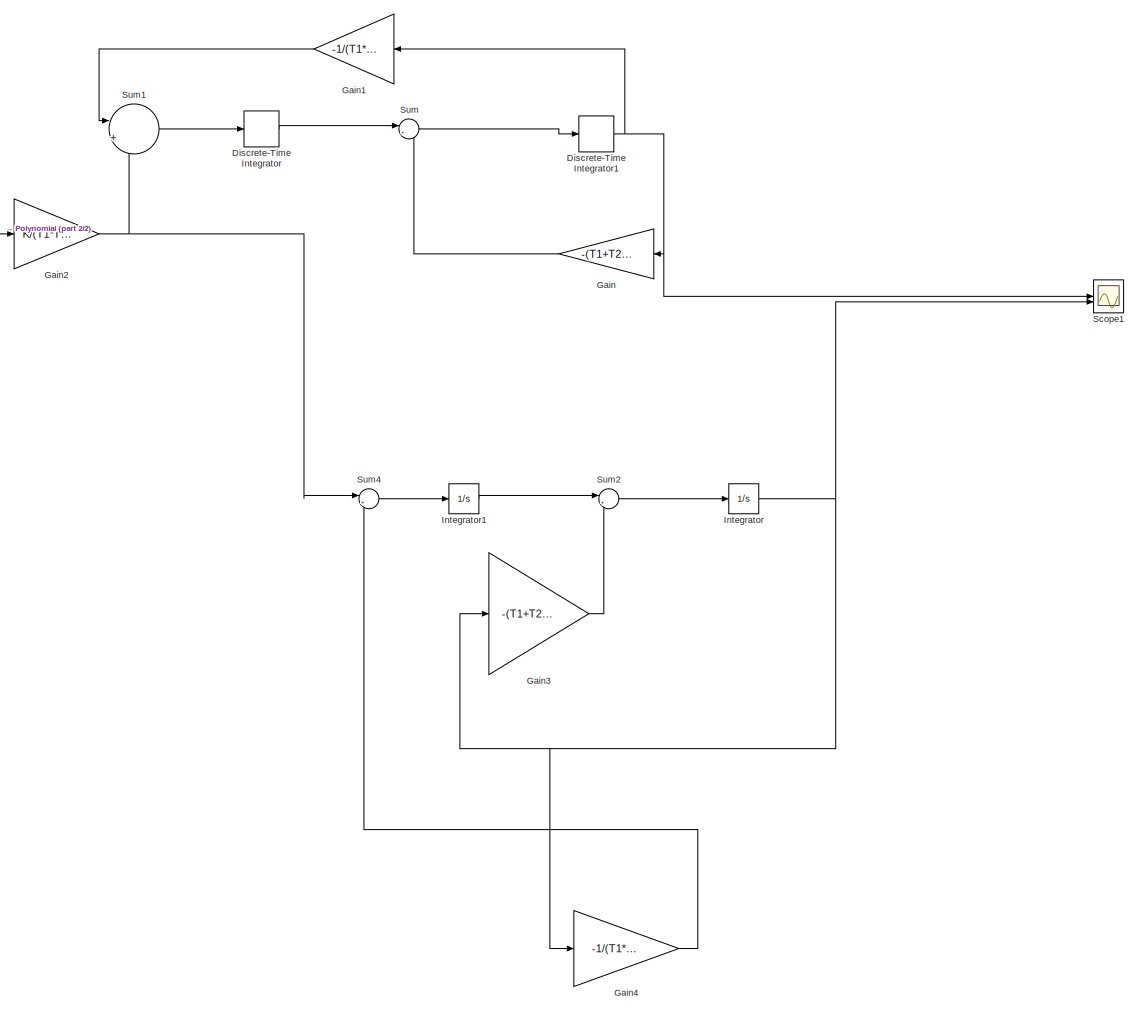
[diagram: root canvas - part 1/2, most of the canvas]
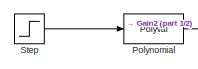
[diagram: root canvas - part 2/2, top left region]
MODEL slx_1538430a452f
KIND model
CONFIG AbsTol = auto
CONFIG EnableMultiTasking = off
CONFIG FixedStep = auto
CONFIG MaxStep = auto
CONFIG MinStep = auto
CONFIG RelTol = 1e-3
CONFIG SampleTimeConstraint = Unconstrained
CONFIG SolverName = VariableStepAuto
CONFIG StartTime = 0.0
CONFIG StopTime = 100.0
WORKSPACE source: mxarray member
WORKSPACE T1: Simulink.Parameter (value not decoded)
WORKSPACE T2: Simulink.Parameter (value not decoded)
BLOCK [DiscreteIntegrator] Discrete-Time Integrator
  ICPrevOutput = DiscIntNeverNeededParam
  ICPrevScaledInput = DiscIntNeverNeededParam
  InitialConditionSetting = Auto
  SampleTime = 3
BLOCK [DiscreteIntegrator] Discrete-Time Integrator1
  ICPrevOutput = DiscIntNeverNeededParam
  ICPrevScaledInput = DiscIntNeverNeededParam
  InitialConditionSetting = Auto
  SampleTime = 3
BLOCK [Gain] Gain
  Gain = -(T1+T2)/(T1*T2)
  NameLocation = top
BLOCK [Gain] Gain1
  Gain = -1/(T1*T2)
  NameLocation = top
BLOCK [Gain] Gain2
  Gain = K/(T1*T2)
BLOCK [Gain] Gain3
  Gain = -(T1+T2)/(T1*T2)
BLOCK [Gain] Gain4
  Gain = -1/(T1*T2)
BLOCK [Integrator] Integrator
BLOCK [Integrator] Integrator1
BLOCK [Polyval] Polynomial
  Coefs = [-0.41,-0.41,-0.86,-0.8]
BLOCK [Scope] Scope1
  Floating = off
  NumInputPorts = 2
  ScopeSpecificationString = Simulink.scopes.TimeScopeBlockCfg('CurrentConfiguration', extmgr.ConfigurationSet(extmgr.Configuration('Core','General UI',true),extmgr.Configuration('Core','Source UI',true),extmgr.Configuration('Sources','WiredSimulink',true,'DataLoggingVariableName','ScopeData1'),extmgr.Configuration('Visuals','Time Domain',true,'SerializedDisplays',{struct('MinYLimReal','-2.78995','MaxYLimReal','0.30999','YLab...<+1455ch>
BLOCK [Step] Step
  SampleTime = 1
BLOCK [Sum] Sum
  Inputs = |++
BLOCK [Sum] Sum1
  Inputs = |++
BLOCK [Sum] Sum2
  Inputs = |++
BLOCK [Sum] Sum4
  Inputs = |++
NET Discrete-Time Integrator1:1 -> Gain1:1, Gain:1, Scope1:1
LINE Discrete-Time Integrator:1 -> Sum:1
LINE Gain1:1 -> Sum1:1
NET Gain2:1 -> Sum1:2, Sum4:1
LINE Gain3:1 -> Sum2:2
LINE Gain4:1 -> Sum4:2
LINE Gain:1 -> Sum:2
LINE Integrator1:1 -> Sum2:1
NET Integrator:1 -> Gain3:1, Gain4:1, Scope1:2
LINE Polynomial:1 -> Gain2:1
LINE Step:1 -> Polynomial:1
LINE Sum1:1 -> Discrete-Time Integrator:1
LINE Sum2:1 -> Integrator:1
LINE Sum4:1 -> Integrator1:1
LINE Sum:1 -> Discrete-Time Integrator1:1
note: NET lines group one-source signal fan-out (src -> all destinations, sorted); 1:1 wires keep LINE
